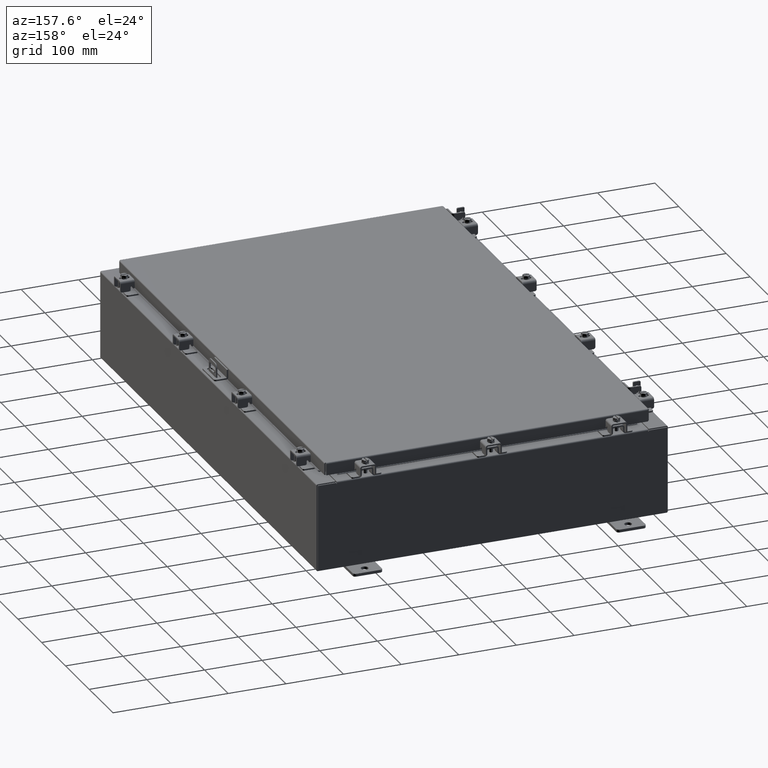
[diagram: clean part render]
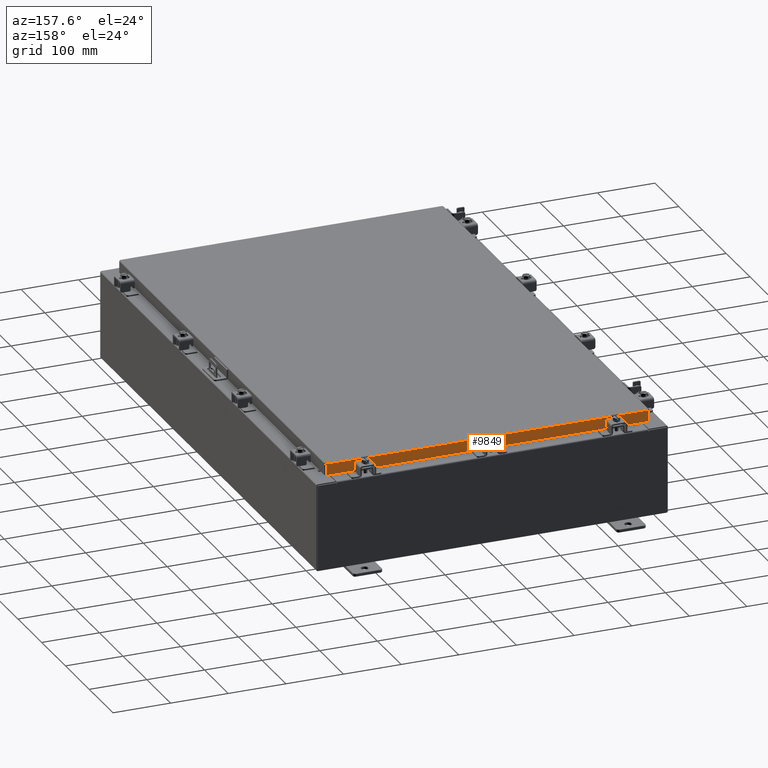
[diagram: same view with one face highlighted and labeled with its STEP entity id]
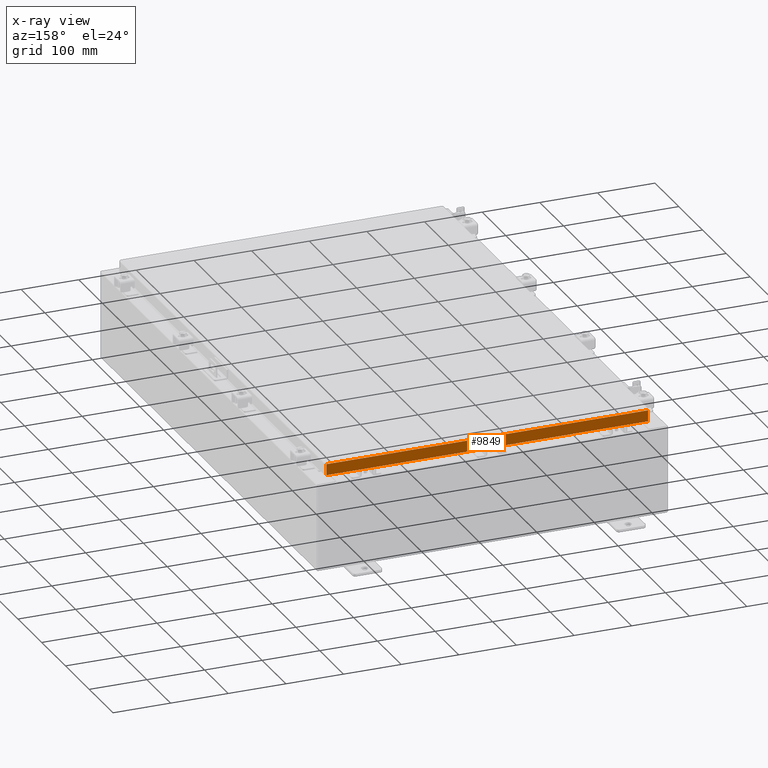
[diagram: x-ray of the same camera — body ghosted, the highlighted face saturated]
A machine part, auxiliary view. The second image highlights one B-rep face of the part: STEP entity #9849.
The next image is the same camera in x-ray: the body ghosted, the highlighted face saturated — about 0% of this face is hidden behind the body in this view.
In plain terms, the highlighted planar face has unit normal (0, -1, -0).
Its self-contained STEP definition (entity closure, byte-faithful):
#334 = VERTEX_POINT ( 'NONE', #6808 ) ;
#1553 = ORIENTED_EDGE ( 'NONE', *, *, #8420, .F. ) ;
#1930 = VERTEX_POINT ( 'NONE', #4913 ) ;
#2179 = PLANE ( 'NONE',  #8489 ) ;
#2332 = LINE ( 'NONE', #19896, #20843 ) ;
#2816 = EDGE_LOOP ( 'NONE', ( #19612, #7688, #1553, #15435, #12837, #20154 ) ) ;
#3164 = VERTEX_POINT ( 'NONE', #15537 ) ;
#3488 = CARTESIAN_POINT ( 'NONE',  ( -11.07800000000000300, 17.09399999999999800, -0.08770000000000007000 ) ) ;
#3589 = CARTESIAN_POINT ( 'NONE',  ( -10.98915786437626900, 17.09399999999999800, -0.07469999999999978000 ) ) ;
#4011 = CARTESIAN_POINT ( 'NONE',  ( -5.941356432273423300E-030, 17.09399999999999800, 4.844676449176213100E-014 ) ) ;
#4913 = CARTESIAN_POINT ( 'NONE',  ( -10.98915786437626900, 17.09400000000000100, -0.8500000000000024200 ) ) ;
#5653 = DIRECTION ( 'NONE',  ( 1.000000000000000000, -4.379057701015054300E-047, 1.233005954894504400E-016 ) ) ;
#6808 = CARTESIAN_POINT ( 'NONE',  ( -10.98915786437626900, 17.09399999999999800, -0.08770000000000007000 ) ) ;
#7640 = DIRECTION ( 'NONE',  ( 3.475696988576941300E-031, -1.000000000000000000, -2.818880942772350300E-015 ) ) ;
#7654 = EDGE_CURVE ( 'NONE', #16189, #334, #12049, .T. ) ;
#7688 = ORIENTED_EDGE ( 'NONE', *, *, #19211, .T. ) ;
#8234 = CARTESIAN_POINT ( 'NONE',  ( 10.98915786437626700, 17.09399999999999800, 4.844676449176213100E-014 ) ) ;
#8420 = EDGE_CURVE ( 'NONE', #15363, #3164, #9222, .T. ) ;
#8489 = AXIS2_PLACEMENT_3D ( 'NONE', #4011, #7640, #20155 ) ;
#8629 = CARTESIAN_POINT ( 'NONE',  ( -10.23915786437626700, 17.09399999999999100, -0.8500000000000033100 ) ) ;
#8750 = LINE ( 'NONE', #8234, #18235 ) ;
#8857 = LINE ( 'NONE', #3589, #22549 ) ;
#9222 = LINE ( 'NONE', #16301, #13968 ) ;
#9534 = LINE ( 'NONE', #8629, #13714 ) ;
#9849 = ADVANCED_FACE ( 'NONE', ( #10003 ), #2179, .F. ) ;
#10003 = FACE_OUTER_BOUND ( 'NONE', #2816, .T. ) ;
#10203 = CARTESIAN_POINT ( 'NONE',  ( 10.23915786437626700, 17.09399999999999100, -0.8500000000000033100 ) ) ;
#10528 = EDGE_CURVE ( 'NONE', #1930, #13930, #2332, .T. ) ;
#10875 = CARTESIAN_POINT ( 'NONE',  ( 10.98915786437626700, 17.09399999999999800, -0.08770000000000007000 ) ) ;
#11005 = DIRECTION ( 'NONE',  ( 1.000000000000000000, -4.379057701015054300E-047, 1.233005954894504400E-016 ) ) ;
#12049 = LINE ( 'NONE', #3488, #20951 ) ;
#12837 = ORIENTED_EDGE ( 'NONE', *, *, #10528, .F. ) ;
#13714 = VECTOR ( 'NONE', #19175, 39.37007874015748100 ) ;
#13930 = VERTEX_POINT ( 'NONE', #16158 ) ;
#13968 = VECTOR ( 'NONE', #11005, 39.37007874015748100 ) ;
#15363 = VERTEX_POINT ( 'NONE', #10203 ) ;
#15435 = ORIENTED_EDGE ( 'NONE', *, *, #16030, .F. ) ;
#15537 = CARTESIAN_POINT ( 'NONE',  ( 10.98915786437626700, 17.09400000000000100, -0.8499999999999996400 ) ) ;
#16014 = DIRECTION ( 'NONE',  ( -1.000000000000000000, -3.475696988576942200E-031, -9.473942235605600700E-046 ) ) ;
#16030 = EDGE_CURVE ( 'NONE', #13930, #15363, #9534, .T. ) ;
#16125 = DIRECTION ( 'NONE',  ( -0.0000000000000000000, 2.818880942772350300E-015, -1.000000000000000000 ) ) ;
#16158 = CARTESIAN_POINT ( 'NONE',  ( -10.23915786437626700, 17.09399999999999100, -0.8500000000000033100 ) ) ;
#16189 = VERTEX_POINT ( 'NONE', #10875 ) ;
#16301 = CARTESIAN_POINT ( 'NONE',  ( -11.07800000000000300, 17.09400000000000100, -0.8500000000000024200 ) ) ;
#18235 = VECTOR ( 'NONE', #20707, 39.37007874015748100 ) ;
#18729 = EDGE_CURVE ( 'NONE', #334, #1930, #8857, .T. ) ;
#19175 = DIRECTION ( 'NONE',  ( 1.000000000000000000, -0.0000000000000000000, -0.0000000000000000000 ) ) ;
#19211 = EDGE_CURVE ( 'NONE', #16189, #3164, #8750, .T. ) ;
#19612 = ORIENTED_EDGE ( 'NONE', *, *, #7654, .F. ) ;
#19896 = CARTESIAN_POINT ( 'NONE',  ( -11.07800000000000300, 17.09400000000000100, -0.8500000000000024200 ) ) ;
#20154 = ORIENTED_EDGE ( 'NONE', *, *, #18729, .F. ) ;
#20155 = DIRECTION ( 'NONE',  ( 0.0000000000000000000, 2.818880942772350300E-015, -1.000000000000000000 ) ) ;
#20707 = DIRECTION ( 'NONE',  ( 0.0000000000000000000, 2.818880942772350300E-015, -1.000000000000000000 ) ) ;
#20843 = VECTOR ( 'NONE', #5653, 39.37007874015748100 ) ;
#20951 = VECTOR ( 'NONE', #16014, 39.37007874015748100 ) ;
#22549 = VECTOR ( 'NONE', #16125, 39.37007874015748100 ) ;